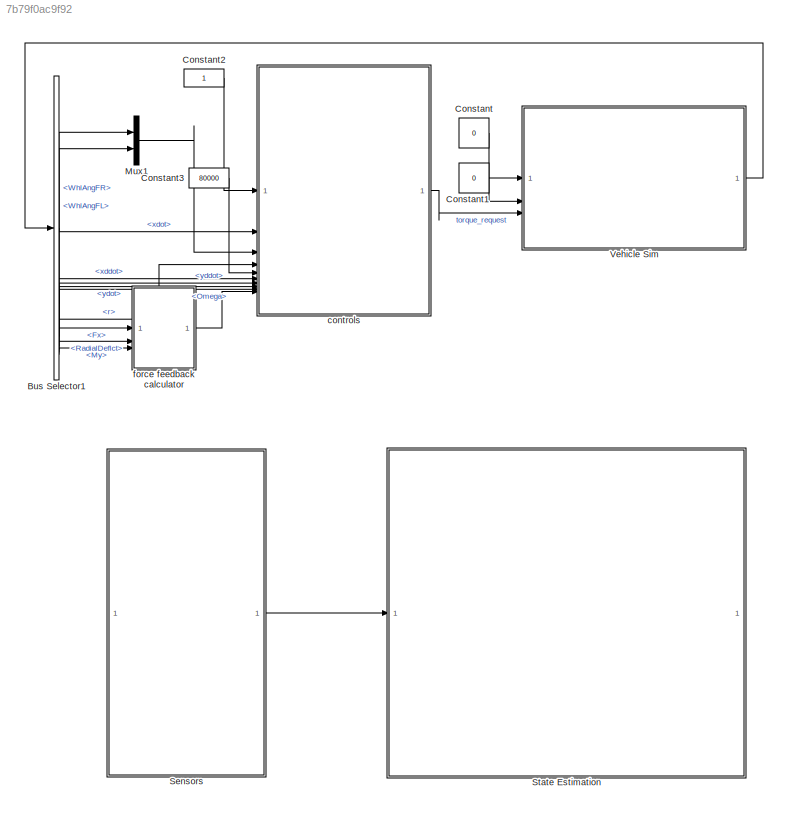
MODEL slx_7b79f0ac9f92
KIND model
CONFIG AbsTol = auto
CONFIG EnableMultiTasking = off
CONFIG FixedStep = auto
CONFIG MaxStep = auto
CONFIG MinStep = auto
CONFIG RelTol = 1e-3
CONFIG SampleTimeConstraint = Unconstrained
CONFIG SolverName = ode45
CONFIG StartTime = 0.0
CONFIG StopTime = 10
BLOCK [BusSelector] Bus Selector1
  OutputSignals = BdyFrm.Cg.Vel.xdot,BdyFrm.FrntAxl.Steer.WhlAngFL,BdyFrm.FrntAxl.Steer.WhlAngFR,BdyFrm.Cg.AngVel.r,BdyFrm.Cg.Acc.xddot,BdyFrm.Cg.Acc.yddot,BdyFrm.Cg.Vel.ydot,Wheels.Omega,Wheels.Fx,Wheels.RadialDeflct,Wheels.My
BLOCK [Constant] Constant
  Value = 0
BLOCK [Constant] Constant1
  Value = 0
BLOCK [Constant] Constant2
BLOCK [Constant] Constant3
  Value = 80000
BLOCK [Mux] Mux1
  DisplayOption = bar
  Inputs = 2
BLOCK [SubSystem] Sensors
  Commented = on
  ReferencedSubsystem = sensor
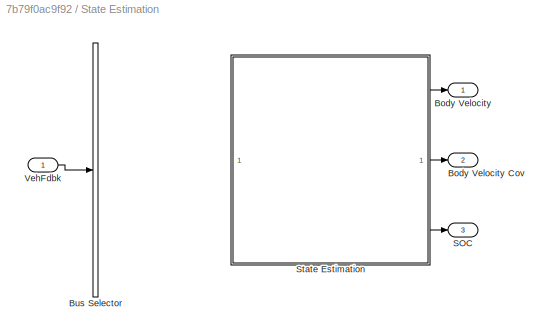
BLOCK [SubSystem] State Estimation
  Commented = on
BLOCK [Outport] State Estimation/Body Velocity
BLOCK [Outport] State Estimation/Body Velocity Cov
  Port = 2
BLOCK [BusSelector] State Estimation/Bus Selector
  OutputSignals = BdyFrm.Cg.Acc.ax,BdyFrm.Cg.Acc.ay,BdyFrm.Cg.AngVel.r
BLOCK [Outport] State Estimation/SOC
  Port = 3
BLOCK [SubSystem] State Estimation/State Estimation
  ReferencedSubsystem = state_estimation
BLOCK [Inport] State Estimation/VehFdbk
BLOCK [SubSystem] Vehicle Sim
  ReferencedSubsystem = vehicle_sim
BLOCK [SubSystem] controls
  ReferencedSubsystem = controls
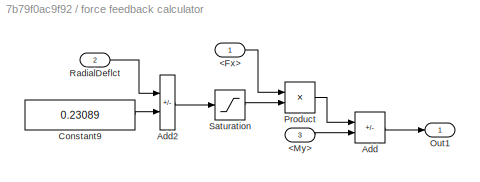
BLOCK [SubSystem] force feedback calculator
BLOCK [Inport] force feedback calculator/<Fx>
  PortDimensions = 4
  Unit = N
BLOCK [Inport] force feedback calculator/<My>
  Port = 3
  PortDimensions = 4
  Unit = N*m
BLOCK [Sum] force feedback calculator/Add
  IconShape = rectangular
  Inputs = -+
BLOCK [Sum] force feedback calculator/Add2
  IconShape = rectangular
  Inputs = -+
BLOCK [Constant] force feedback calculator/Constant9
  Value = 0.23089
BLOCK [Outport] force feedback calculator/Out1
  PortDimensions = 4
  Unit = N*m
BLOCK [Product] force feedback calculator/Product
BLOCK [Inport] force feedback calculator/RadialDeflct
  Port = 2
BLOCK [Saturate] force feedback calculator/Saturation
  LowerLimit = 0
  UpperLimit = inf
  ZeroCross = off
LINE Bus Selector1:1 -> controls:2
LINE Bus Selector1:10 -> force feedback calculator:2
LINE Bus Selector1:11 -> force feedback calculator:3
LINE Bus Selector1:2 -> Mux1:1
LINE Bus Selector1:3 -> Mux1:2
LINE Bus Selector1:4 -> controls:4
LINE Bus Selector1:5 -> controls:6
LINE Bus Selector1:6 -> controls:7
LINE Bus Selector1:7 -> controls:8
LINE Bus Selector1:8 -> controls:9
LINE Bus Selector1:9 -> force feedback calculator:1
LINE Constant1:1 -> Vehicle Sim:2
LINE Constant2:1 -> controls:1
LINE Constant3:1 -> controls:5
LINE Constant:1 -> Vehicle Sim:1
LINE Mux1:1 -> controls:3
LINE Sensors:1 -> State Estimation:1
LINE State Estimation/State Estimation:1 -> State Estimation/Body Velocity:1
LINE State Estimation/State Estimation:2 -> State Estimation/Body Velocity Cov:1
LINE State Estimation/State Estimation:3 -> State Estimation/SOC:1
LINE State Estimation/VehFdbk:1 -> State Estimation/Bus Selector:1
LINE Vehicle Sim:1 -> Bus Selector1:1
LINE controls:1 -> Vehicle Sim:3
LINE force feedback calculator/<Fx>:1 -> force feedback calculator/Product:1
LINE force feedback calculator/<My>:1 -> force feedback calculator/Add:2
LINE force feedback calculator/Add2:1 -> force feedback calculator/Saturation:1
LINE force feedback calculator/Add:1 -> force feedback calculator/Out1:1
LINE force feedback calculator/Constant9:1 -> force feedback calculator/Add2:2
LINE force feedback calculator/Product:1 -> force feedback calculator/Add:1
LINE force feedback calculator/RadialDeflct:1 -> force feedback calculator/Add2:1
LINE force feedback calculator/Saturation:1 -> force feedback calculator/Product:2
LINE force feedback calculator:1 -> controls:10
